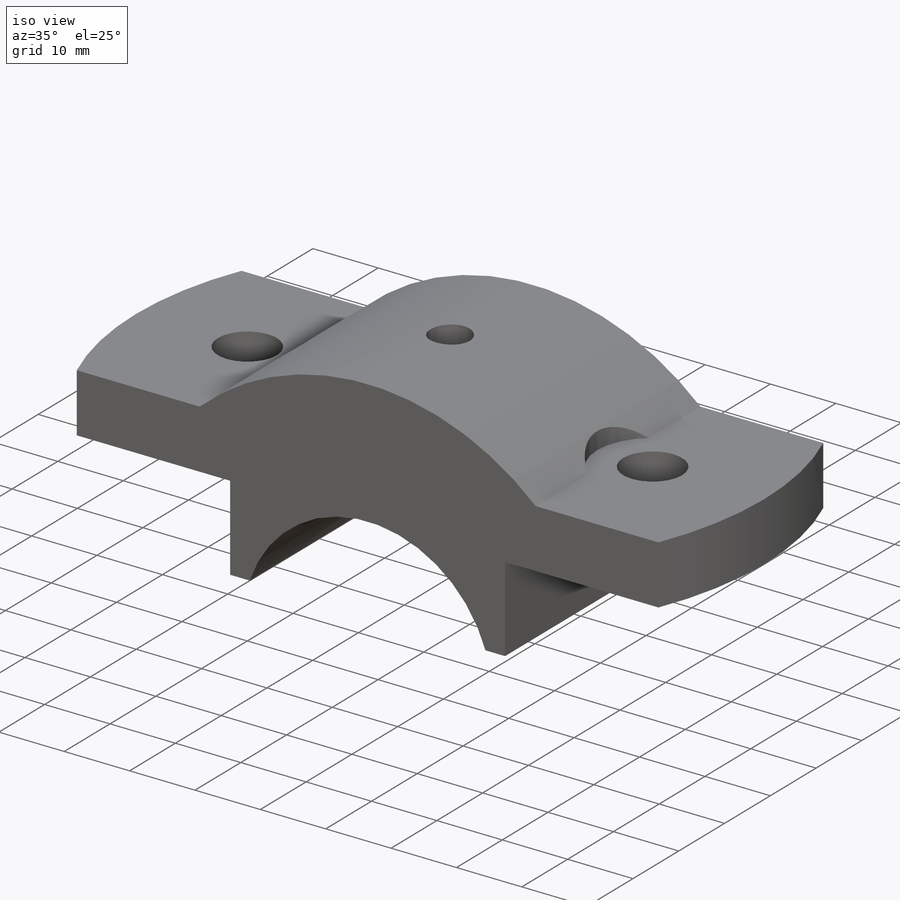
[diagram: iso view]
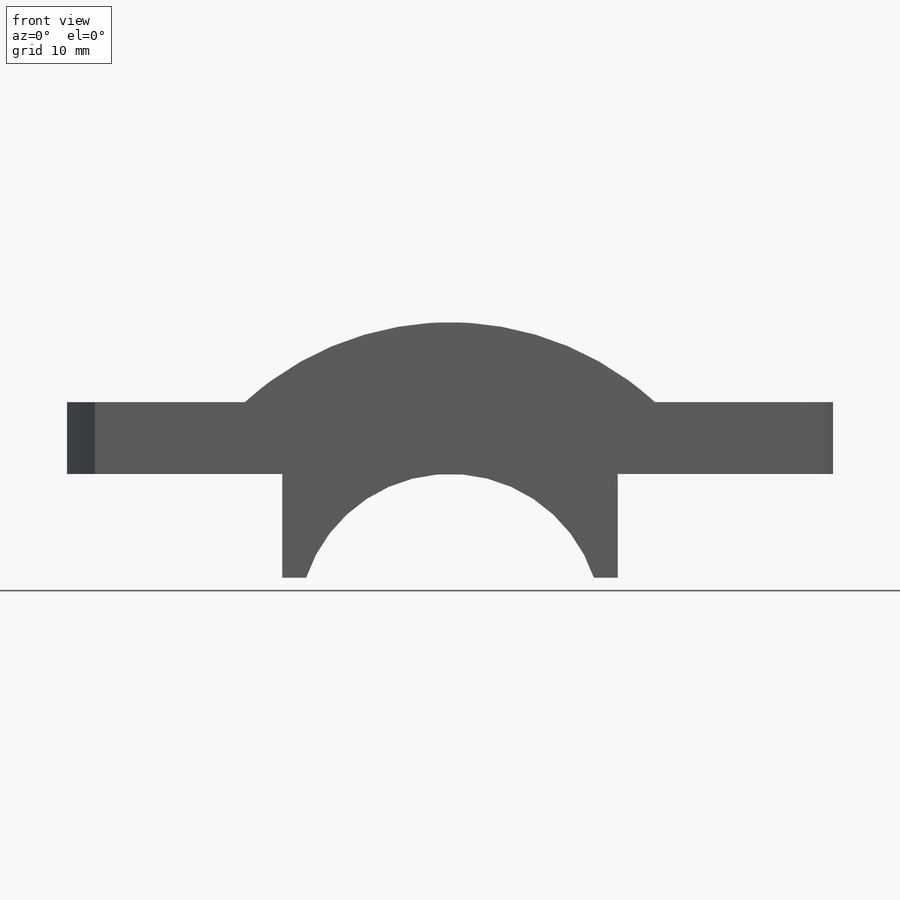
[diagram: front view]
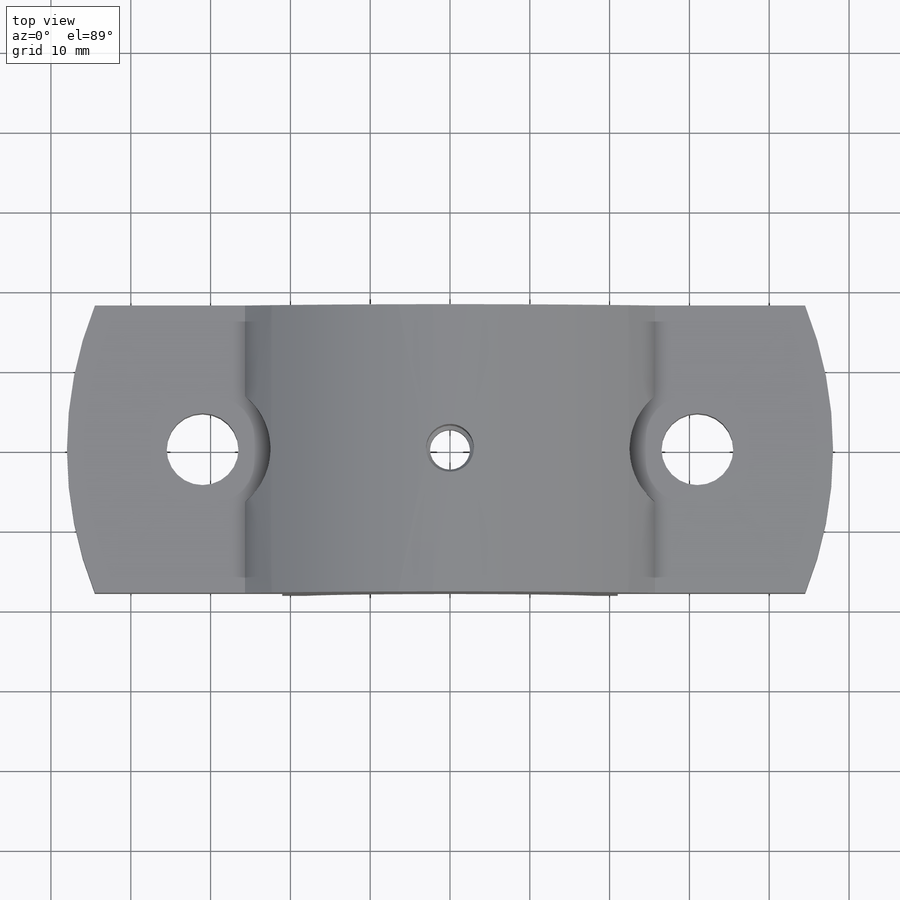
[diagram: top view]
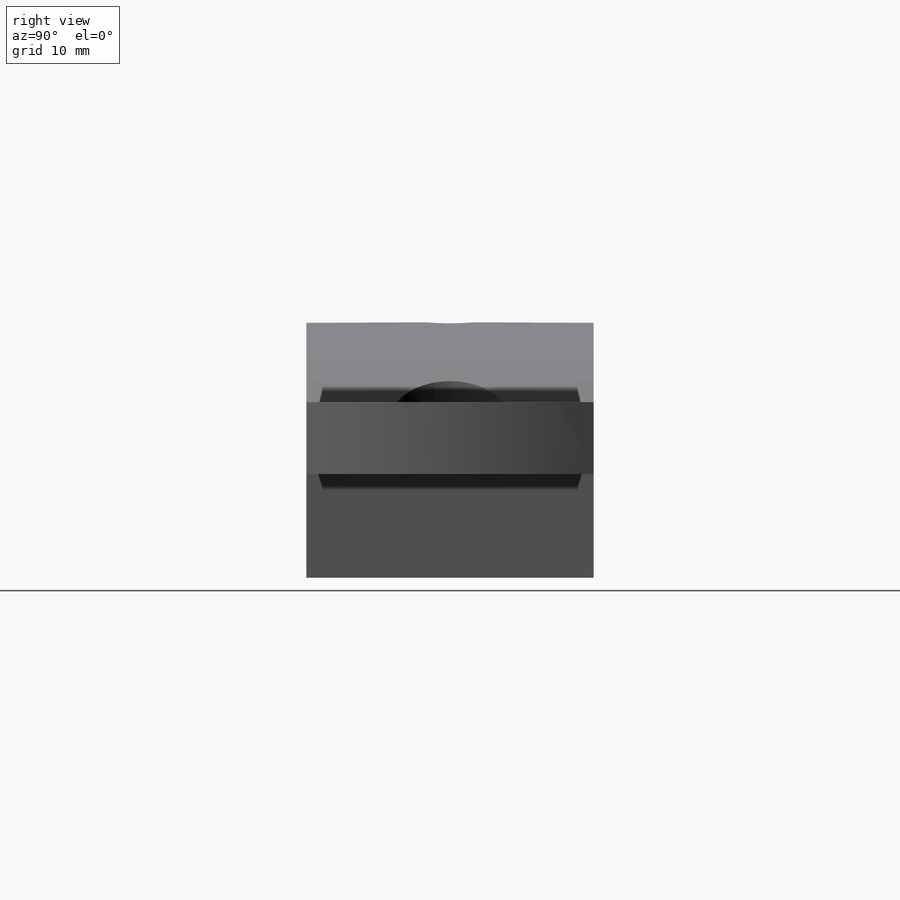
[diagram: right view]
SOLIDWORKS PART (.sldprt)
format: sldprt  version: not decoded by parser v0  size: 286,208 bytes
history: native  units: mm
features: sketch x8, cut_extrude x3, hole x2, mirror x2, material x1, extrude x1, plane x1 + 1 further entry (+11 scaffold rows collapsed)
feature tree (30):
  scaffold x11  (default folders/planes/origin — collapsed)
  material  "Material <not specified>"
  "Annotations"  RD1=50mm
  sketch  "Sketch1"  dims[D1=38.0mm D2=76.0mm D3=6.0mm D4=3.0mm D5=13.0mm D6=9.0mm D7=50.0mm]
  extrude  "Boss-Extrude2"  Depth=36mm
  hole  "Ø6.0mm Dowel Hole4"  Diameter=9mm Depth=22mm
  sketch  "Sketch13"  dims[D1=31.0mm]
  sketch  "Sketch14"  dims[hole-wizard template sketch: 60 standard entries collapsed; hole parameters kept: c18.Thru Hole Depth=22.0mm]
  mirror  "Mirror1"
  plane  "Plane2"  Offset=38mm
  sketch  "Sketch16"  dims[D1=17.0mm]
  cut_extrude  "Cut-Extrude1"  [1 undecoded]
  sketch  "Sketch17"  dims[D1=17.0mm]
  cut_extrude  "Cut-Extrude2"  Depth=45mm
  hole  "CBORE for M5 Hex Head Bolt1"  Diameter=5mm Depth=32mm
  sketch  "3DSketch8"  dims[D1=0.0mm D2=0.0mm]
  sketch  "Sketch18"  dims[hole-wizard template sketch: 42 standard entries collapsed; hole parameters kept: c12.Thru Hole Depth=32.0mm c12.C'Bore Dia.=6.0mm c12.C'Bore Depth=13.0mm c12.Mid C'Sink Dia.=5.99mm c12.D6=~5.388154mm c12.Mid C'Sink Angle=90.0deg]
  sketch  "Sketch19"  dims[D1=48.0mm]
  cut_extrude  "Cut-Extrude3"  [1 undecoded]
  mirror  "Mirror2"
decode coverage: 12 of 16 modeling features carry decoded parameters; 1 rows unclassified (native names shown)
note: ~ marks probable driven/reference dimensions
note: 2 parameter values undecoded
note: suppression state not decoded; provenance and decode notes live in map.json
